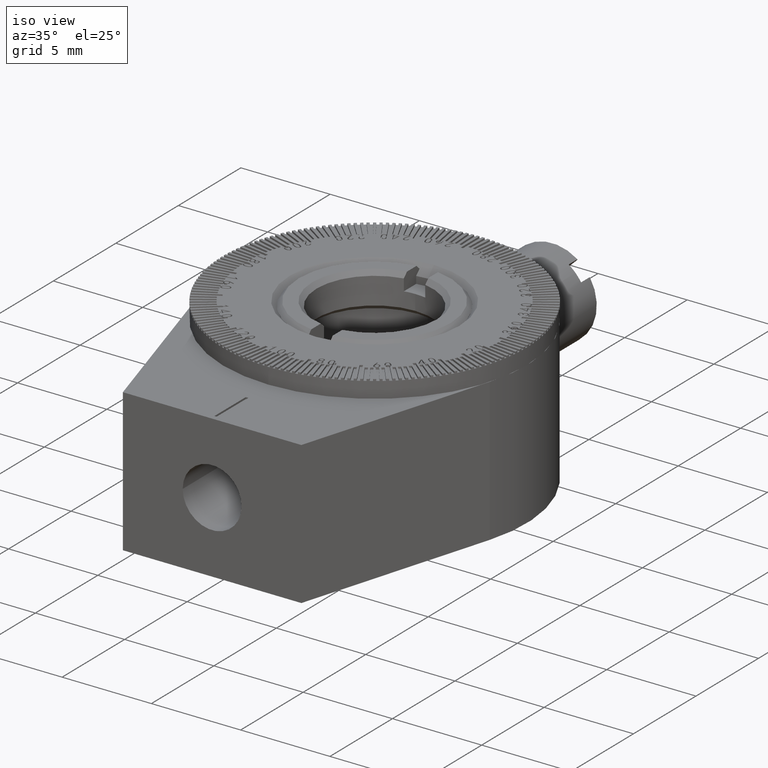
[diagram: clean part render]
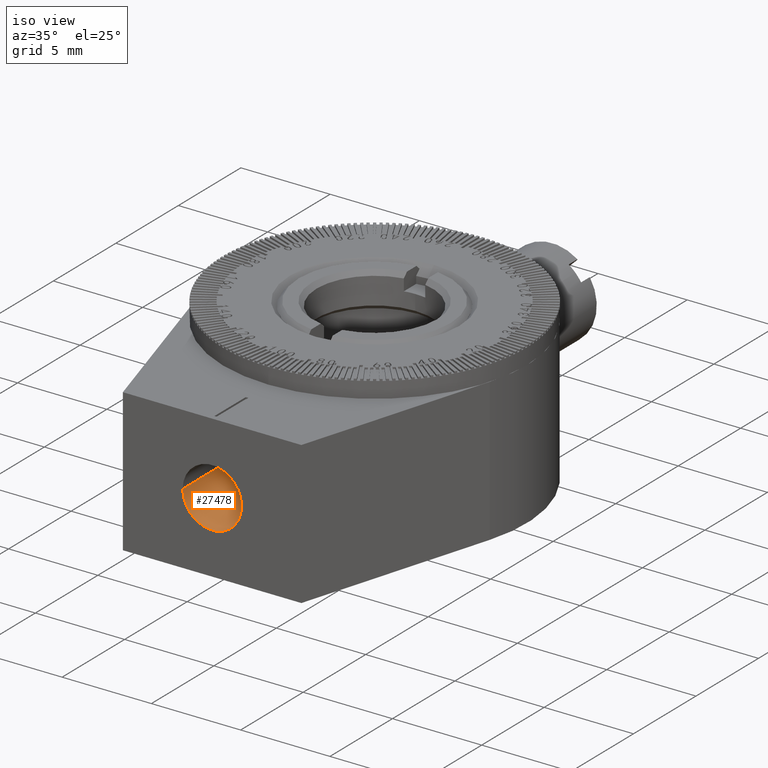
[diagram: same view with one face highlighted and labeled with its STEP entity id]
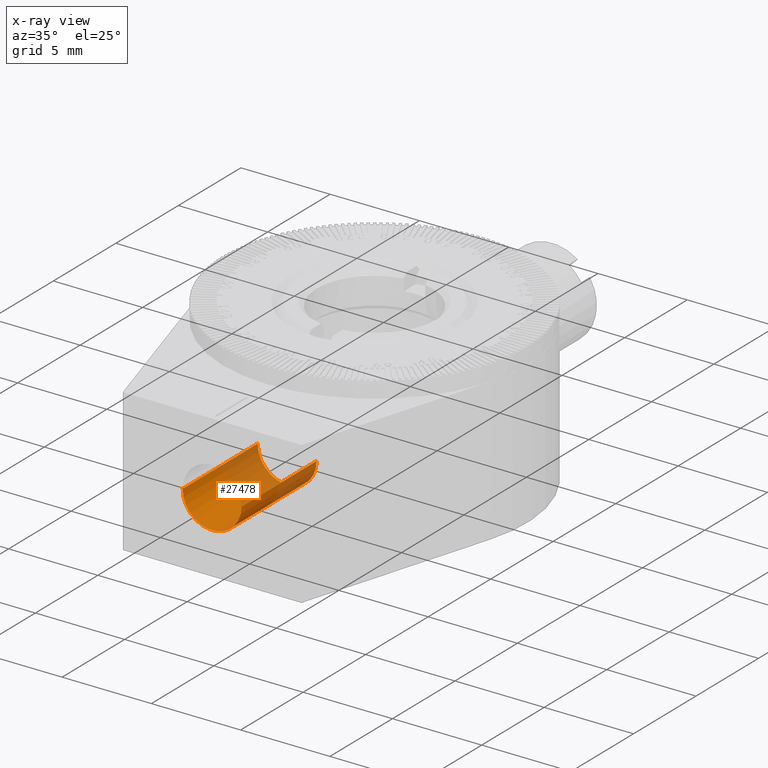
[diagram: x-ray of the same camera — body ghosted, the highlighted face saturated]
A machine part, iso view. The second image highlights one B-rep face of the part: STEP entity #27478.
The next image is the same camera in x-ray: the body ghosted, the highlighted face saturated — about 42% of this face is hidden behind the body in this view.
In plain terms, the highlighted cylindrical surface (edge-blend (fillet) strip) has radius 1.65 mm, axis along (0, -1, 0).
Its self-contained STEP definition (entity closure, byte-faithful):
#731 = DIRECTION ( 'NONE',  ( -0.000000000000000000, -0.000000000000000000, 1.000000000000000000 ) ) ;
#3558 = DIRECTION ( 'NONE',  ( -0.000000000000000000, -0.000000000000000000, 1.000000000000000000 ) ) ;
#4134 = VERTEX_POINT ( 'NONE', #4377 ) ;
#4377 = CARTESIAN_POINT ( 'NONE',  ( 1.649999999999990141, 4.000000000000000000, 13.00000000000000178 ) ) ;
#4434 = ORIENTED_EDGE ( 'NONE', *, *, #15970, .F. ) ;
#8326 = DIRECTION ( 'NONE',  ( 1.000000000000000000, 0.000000000000000000, 0.000000000000000000 ) ) ;
#10002 = LINE ( 'NONE', #39104, #29415 ) ;
#11266 = CARTESIAN_POINT ( 'NONE',  ( 2.535365080273789674E-16, 4.000000000000000000, 7.000000000000000000 ) ) ;
#14967 = EDGE_LOOP ( 'NONE', ( #4434, #24828, #52525, #52785 ) ) ;
#15970 = EDGE_CURVE ( 'NONE', #22664, #36930, #40463, .T. ) ;
#20141 = EDGE_CURVE ( 'NONE', #22664, #23695, #52483, .T. ) ;
#22050 = EDGE_CURVE ( 'NONE', #36930, #4134, #10002, .T. ) ;
#22664 = VERTEX_POINT ( 'NONE', #41158 ) ;
#22777 = FACE_OUTER_BOUND ( 'NONE', #14967, .T. ) ;
#23695 = VERTEX_POINT ( 'NONE', #58863 ) ;
#24828 = ORIENTED_EDGE ( 'NONE', *, *, #20141, .T. ) ;
#27019 = CARTESIAN_POINT ( 'NONE',  ( 1.649999999999998135, 4.000000000000000000, 7.000000000000000000 ) ) ;
#27478 = ADVANCED_FACE ( 'NONE', ( #22777 ), #42285, .F. ) ;
#28533 = DIRECTION ( 'NONE',  ( 1.000000000000000000, 0.000000000000000000, 0.000000000000000000 ) ) ;
#29415 = VECTOR ( 'NONE', #58611, 1000.000000000000000 ) ;
#30230 = AXIS2_PLACEMENT_3D ( 'NONE', #11266, #731, #34943 ) ;
#31064 = EDGE_CURVE ( 'NONE', #23695, #4134, #43304, .T. ) ;
#32336 = CARTESIAN_POINT ( 'NONE',  ( 2.535365080273789674E-16, 4.000000000000000000, 13.00000000000000178 ) ) ;
#32947 = DIRECTION ( 'NONE',  ( -0.000000000000000000, -0.000000000000000000, 1.000000000000000000 ) ) ;
#34943 = DIRECTION ( 'NONE',  ( 1.000000000000000000, 0.000000000000000000, 0.000000000000000000 ) ) ;
#36930 = VERTEX_POINT ( 'NONE', #27019 ) ;
#37182 = AXIS2_PLACEMENT_3D ( 'NONE', #32336, #32947, #8326 ) ;
#39104 = CARTESIAN_POINT ( 'NONE',  ( 1.649999999999994138, 4.000000000000000000, 13.00000000000000000 ) ) ;
#40463 = CIRCLE ( 'NONE', #30230, 1.649999999999997913 ) ;
#40689 = VECTOR ( 'NONE', #3558, 1000.000000000000000 ) ;
#41158 = CARTESIAN_POINT ( 'NONE',  ( -1.649999999999997913, 4.000000000000000000, 7.000000000000000000 ) ) ;
#42285 = CYLINDRICAL_SURFACE ( 'NONE', #45397, 1.649999999999993916 ) ;
#43304 = CIRCLE ( 'NONE', #37182, 1.649999999999989919 ) ;
#45397 = AXIS2_PLACEMENT_3D ( 'NONE', #56999, #63068, #28533 ) ;
#52483 = LINE ( 'NONE', #62088, #40689 ) ;
#52525 = ORIENTED_EDGE ( 'NONE', *, *, #31064, .T. ) ;
#52785 = ORIENTED_EDGE ( 'NONE', *, *, #22050, .F. ) ;
#56999 = CARTESIAN_POINT ( 'NONE',  ( 2.535365080273789674E-16, 4.000000000000000000, 13.00000000000000000 ) ) ;
#58611 = DIRECTION ( 'NONE',  ( -0.000000000000000000, -0.000000000000000000, 1.000000000000000000 ) ) ;
#58863 = CARTESIAN_POINT ( 'NONE',  ( -1.649999999999989697, 4.000000000000000000, 13.00000000000000178 ) ) ;
#62088 = CARTESIAN_POINT ( 'NONE',  ( -1.649999999999993694, 4.000000000000000000, 13.00000000000000000 ) ) ;
#63068 = DIRECTION ( 'NONE',  ( -0.000000000000000000, -0.000000000000000000, 1.000000000000000000 ) ) ;